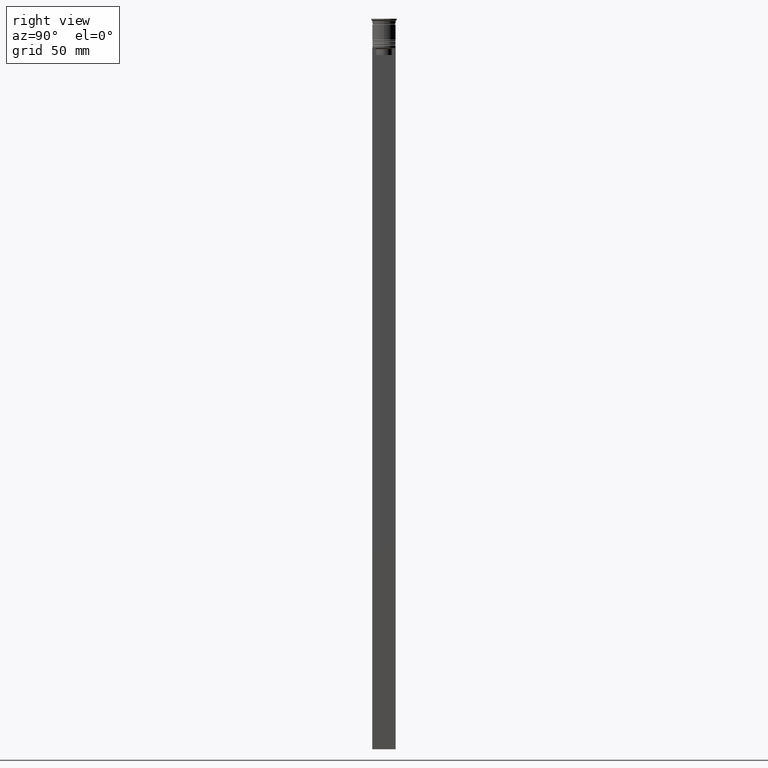
[diagram: clean part render]
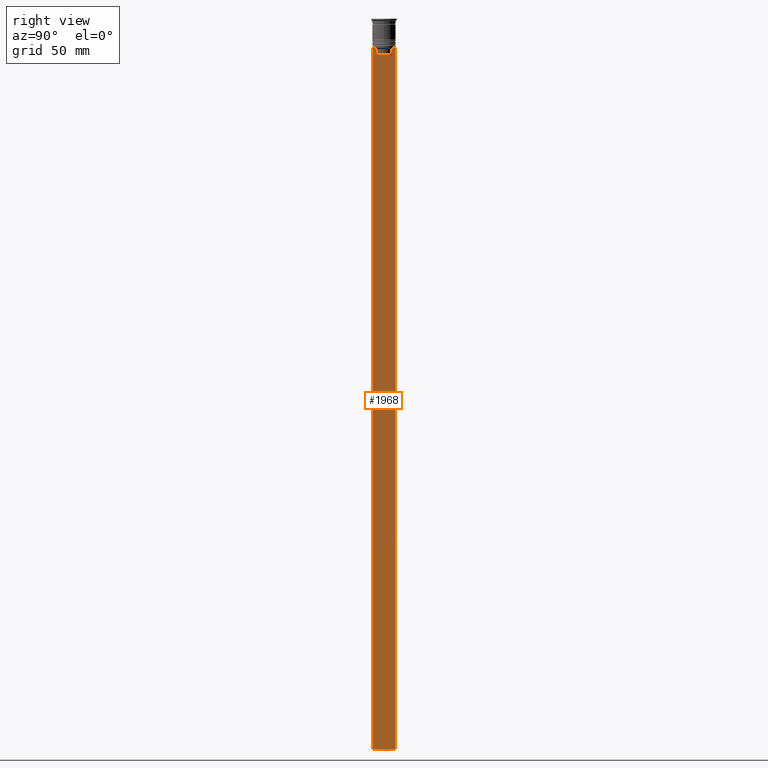
[diagram: same view with one face highlighted and labeled with its STEP entity id]
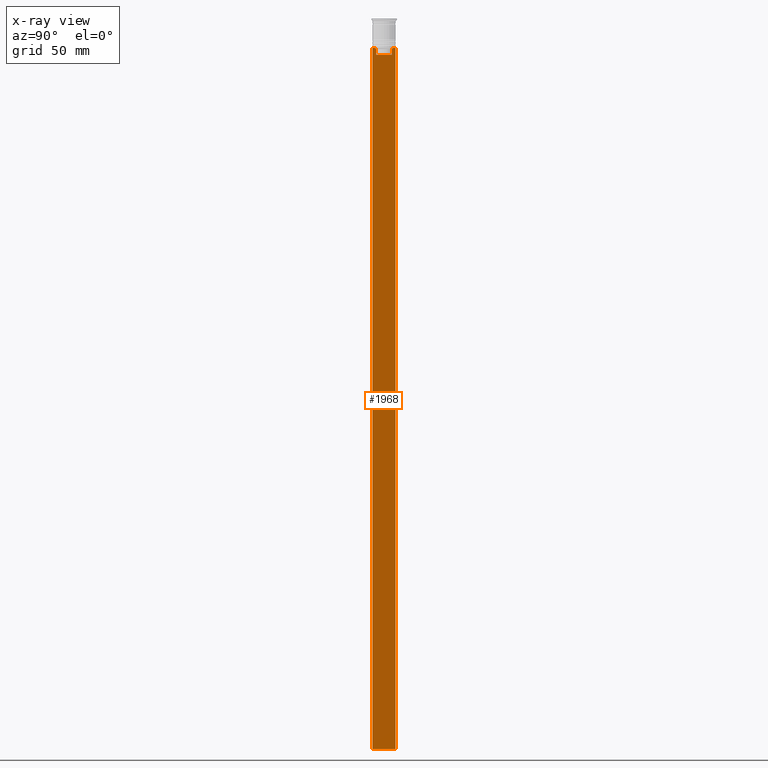
[diagram: x-ray of the same camera — body ghosted, the highlighted face saturated]
A machine part, right view. The second image highlights one B-rep face of the part: STEP entity #1968.
The next image is the same camera in x-ray: the body ghosted, the highlighted face saturated — about 0% of this face is hidden behind the body in this view.
In plain terms, the highlighted planar face has unit normal (-1, 0, 0).
Its self-contained STEP definition (entity closure, byte-faithful):
#14 = LINE ( 'NONE', #836, #1117 ) ;
#30 = CARTESIAN_POINT ( 'NONE',  ( 0.5000000000000000000, -3.867815921162742754, -12.50000000000000000 ) ) ;
#62 = DIRECTION ( 'NONE',  ( 0.000000000000000000, 1.000000000000000000, 0.000000000000000000 ) ) ;
#83 = CARTESIAN_POINT ( 'NONE',  ( 0.5000000000000000000, -4.874423042781575788, -12.50000000000000000 ) ) ;
#92 = VERTEX_POINT ( 'NONE', #1532 ) ;
#101 = VERTEX_POINT ( 'NONE', #779 ) ;
#103 = LINE ( 'NONE', #926, #1994 ) ;
#105 = VECTOR ( 'NONE', #1983, 1000.000000000000000 ) ;
#135 = EDGE_CURVE ( 'NONE', #400, #917, #349, .T. ) ;
#156 = CARTESIAN_POINT ( 'NONE',  ( 0.5000000000000000000, -3.699658232838647365, -12.66676999593996555 ) ) ;
#245 = LINE ( 'NONE', #432, #1605 ) ;
#281 = CARTESIAN_POINT ( 'NONE',  ( 0.5000000000000000000, -4.999999999999999112, -2.450124378879110054 ) ) ;
#343 = CARTESIAN_POINT ( 'NONE',  ( 0.5000000000000000000, -3.363034344160045208, -13.00000000000000178 ) ) ;
#349 = LINE ( 'NONE', #983, #480 ) ;
#380 = DIRECTION ( 'NONE',  ( 0.000000000000000000, 0.000000000000000000, -1.000000000000000000 ) ) ;
#386 = VERTEX_POINT ( 'NONE', #30 ) ;
#389 = VERTEX_POINT ( 'NONE', #1186 ) ;
#395 = CARTESIAN_POINT ( 'NONE',  ( 0.5000000000000000000, 4.874423042781575788, -12.50000000000000000 ) ) ;
#400 = VERTEX_POINT ( 'NONE', #442 ) ;
#432 = CARTESIAN_POINT ( 'NONE',  ( 0.5000000000000000000, -4.999999999999999112, -312.5000000000000000 ) ) ;
#442 = CARTESIAN_POINT ( 'NONE',  ( 0.5000000000000000000, 5.000000000000000888, -12.50000000000000000 ) ) ;
#449 = ORIENTED_EDGE ( 'NONE', *, *, #1131, .T. ) ;
#474 = EDGE_CURVE ( 'NONE', #92, #1432, #495, .T. ) ;
#480 = VECTOR ( 'NONE', #1323, 1000.000000000000000 ) ;
#488 = VERTEX_POINT ( 'NONE', #896 ) ;
#495 = LINE ( 'NONE', #281, #1765 ) ;
#572 = ORIENTED_EDGE ( 'NONE', *, *, #2272, .T. ) ;
#575 = DIRECTION ( 'NONE',  ( 0.000000000000000000, -1.000000000000000000, 0.000000000000000000 ) ) ;
#579 = CARTESIAN_POINT ( 'NONE',  ( 0.5000000000000000000, -3.867815921162742754, -12.50000000000000000 ) ) ;
#609 = CARTESIAN_POINT ( 'NONE',  ( 0.5000000000000000000, -4.999999999999999112, -2.450124378879110054 ) ) ;
#617 = EDGE_CURVE ( 'NONE', #400, #2358, #2548, .T. ) ;
#666 = ORIENTED_EDGE ( 'NONE', *, *, #806, .T. ) ;
#683 = ORIENTED_EDGE ( 'NONE', *, *, #1315, .T. ) ;
#701 = CARTESIAN_POINT ( 'NONE',  ( 0.5000000000000000000, -4.999999999999999112, -12.50000000000000000 ) ) ;
#779 = CARTESIAN_POINT ( 'NONE',  ( 0.5000000000000000000, -3.363034344160045208, -13.00000000000000178 ) ) ;
#782 = ORIENTED_EDGE ( 'NONE', *, *, #135, .F. ) ;
#806 = EDGE_CURVE ( 'NONE', #386, #899, #852, .T. ) ;
#836 = CARTESIAN_POINT ( 'NONE',  ( 0.5000000000000000000, -3.363034344160045208, 0.000000000000000000 ) ) ;
#852 = LINE ( 'NONE', #701, #2477 ) ;
#865 = DIRECTION ( 'NONE',  ( 0.000000000000000000, -1.000000000000000000, 0.000000000000000000 ) ) ;
#896 = CARTESIAN_POINT ( 'NONE',  ( 0.5000000000000000000, 3.363034344160045208, -13.00000000000000178 ) ) ;
#899 = VERTEX_POINT ( 'NONE', #83 ) ;
#917 = VERTEX_POINT ( 'NONE', #2467 ) ;
#919 = CARTESIAN_POINT ( 'NONE',  ( 0.5000000000000000000, -3.531412985305424801, -12.83345201382502765 ) ) ;
#926 = CARTESIAN_POINT ( 'NONE',  ( 0.5000000000000000000, 3.399999999999998135, -15.50000000000000000 ) ) ;
#934 = B_SPLINE_CURVE_WITH_KNOTS ( 'NONE', 3,
 ( #343, #919, #156, #579 ),
 .UNSPECIFIED., .F., .F.,
 ( 4, 4 ),
 ( 0.01632394437298965648, 0.01703543518243618576 ),
 .UNSPECIFIED. ) ;
#962 = EDGE_CURVE ( 'NONE', #899, #92, #1152, .T. ) ;
#983 = CARTESIAN_POINT ( 'NONE',  ( 0.5000000000000000000, 5.000000000000000888, -2.450124378879110054 ) ) ;
#995 = EDGE_CURVE ( 'NONE', #488, #389, #1377, .T. ) ;
#1031 = DIRECTION ( 'NONE',  ( 0.000000000000000000, 0.000000000000000000, 1.000000000000000000 ) ) ;
#1117 = VECTOR ( 'NONE', #1181, 1000.000000000000000 ) ;
#1128 = CARTESIAN_POINT ( 'NONE',  ( 0.5000000000000000000, -4.999999999999999112, -12.50000000000000000 ) ) ;
#1131 = EDGE_CURVE ( 'NONE', #1432, #917, #245, .T. ) ;
#1134 = CARTESIAN_POINT ( 'NONE',  ( 0.5000000000000000000, -4.999999999999999112, -12.50000000000000000 ) ) ;
#1152 = LINE ( 'NONE', #1969, #105 ) ;
#1181 = DIRECTION ( 'NONE',  ( -0.000000000000000000, -0.000000000000000000, 1.000000000000000000 ) ) ;
#1186 = CARTESIAN_POINT ( 'NONE',  ( 0.5000000000000000000, 3.363034344160045652, -15.50000000000000000 ) ) ;
#1217 = ORIENTED_EDGE ( 'NONE', *, *, #617, .T. ) ;
#1278 = CARTESIAN_POINT ( 'NONE',  ( 0.5000000000000000000, 3.531412678228260216, -12.83345231756357840 ) ) ;
#1302 = B_SPLINE_CURVE_WITH_KNOTS ( 'NONE', 3,
 ( #2399, #2376, #1278, #1657 ),
 .UNSPECIFIED., .F., .F.,
 ( 4, 4 ),
 ( 0.006644825462451552783, 0.007355321358912435097 ),
 .UNSPECIFIED. ) ;
#1315 = EDGE_CURVE ( 'NONE', #389, #1891, #103, .T. ) ;
#1323 = DIRECTION ( 'NONE',  ( 0.000000000000000000, 0.000000000000000000, -1.000000000000000000 ) ) ;
#1377 = LINE ( 'NONE', #1958, #1483 ) ;
#1389 = EDGE_CURVE ( 'NONE', #2358, #1910, #1569, .T. ) ;
#1432 = VERTEX_POINT ( 'NONE', #2170 ) ;
#1442 = ORIENTED_EDGE ( 'NONE', *, *, #474, .T. ) ;
#1483 = VECTOR ( 'NONE', #380, 1000.000000000000000 ) ;
#1532 = CARTESIAN_POINT ( 'NONE',  ( 0.5000000000000000000, -4.999999999999999112, -12.50000000000000000 ) ) ;
#1552 = DIRECTION ( 'NONE',  ( 0.000000000000000000, -1.000000000000000000, 0.000000000000000000 ) ) ;
#1569 = LINE ( 'NONE', #1128, #1781 ) ;
#1578 = CARTESIAN_POINT ( 'NONE',  ( 0.5000000000000000000, 3.867815921162742754, -12.50000000000000000 ) ) ;
#1590 = FACE_OUTER_BOUND ( 'NONE', #2544, .T. ) ;
#1605 = VECTOR ( 'NONE', #62, 1000.000000000000000 ) ;
#1657 = CARTESIAN_POINT ( 'NONE',  ( 0.5000000000000000000, 3.363034344160045208, -13.00000000000000178 ) ) ;
#1658 = AXIS2_PLACEMENT_3D ( 'NONE', #609, #2042, #1031 ) ;
#1675 = ORIENTED_EDGE ( 'NONE', *, *, #995, .T. ) ;
#1765 = VECTOR ( 'NONE', #2469, 1000.000000000000000 ) ;
#1781 = VECTOR ( 'NONE', #575, 1000.000000000000000 ) ;
#1817 = CARTESIAN_POINT ( 'NONE',  ( 0.5000000000000000000, -3.363034344160045652, -15.50000000000000000 ) ) ;
#1857 = ORIENTED_EDGE ( 'NONE', *, *, #962, .T. ) ;
#1891 = VERTEX_POINT ( 'NONE', #1817 ) ;
#1910 = VERTEX_POINT ( 'NONE', #1578 ) ;
#1958 = CARTESIAN_POINT ( 'NONE',  ( 0.5000000000000000000, 3.363034344160045208, 0.000000000000000000 ) ) ;
#1968 = ADVANCED_FACE ( 'NONE', ( #1590 ), #2387, .F. ) ;
#1969 = CARTESIAN_POINT ( 'NONE',  ( 0.5000000000000000000, -4.999999999999999112, -12.50000000000000000 ) ) ;
#1976 = VECTOR ( 'NONE', #1552, 1000.000000000000000 ) ;
#1983 = DIRECTION ( 'NONE',  ( 0.000000000000000000, -1.000000000000000000, 0.000000000000000000 ) ) ;
#1988 = EDGE_CURVE ( 'NONE', #1910, #488, #1302, .T. ) ;
#1994 = VECTOR ( 'NONE', #2488, 1000.000000000000000 ) ;
#2042 = DIRECTION ( 'NONE',  ( -1.000000000000000000, 0.000000000000000000, 0.000000000000000000 ) ) ;
#2170 = CARTESIAN_POINT ( 'NONE',  ( 0.5000000000000000000, -4.999999999999999112, -312.5000000000000000 ) ) ;
#2183 = ORIENTED_EDGE ( 'NONE', *, *, #2189, .T. ) ;
#2189 = EDGE_CURVE ( 'NONE', #101, #386, #934, .T. ) ;
#2272 = EDGE_CURVE ( 'NONE', #1891, #101, #14, .T. ) ;
#2358 = VERTEX_POINT ( 'NONE', #395 ) ;
#2376 = CARTESIAN_POINT ( 'NONE',  ( 0.5000000000000000000, 3.699657965831574913, -12.66677026074361301 ) ) ;
#2387 = PLANE ( 'NONE',  #1658 ) ;
#2399 = CARTESIAN_POINT ( 'NONE',  ( 0.5000000000000000000, 3.867815921162742754, -12.50000000000000000 ) ) ;
#2467 = CARTESIAN_POINT ( 'NONE',  ( 0.5000000000000000000, 5.000000000000000888, -312.5000000000000000 ) ) ;
#2469 = DIRECTION ( 'NONE',  ( 0.000000000000000000, 0.000000000000000000, -1.000000000000000000 ) ) ;
#2477 = VECTOR ( 'NONE', #865, 1000.000000000000000 ) ;
#2488 = DIRECTION ( 'NONE',  ( 0.000000000000000000, -1.000000000000000000, 0.000000000000000000 ) ) ;
#2532 = ORIENTED_EDGE ( 'NONE', *, *, #1988, .T. ) ;
#2544 = EDGE_LOOP ( 'NONE', ( #2551, #2532, #1675, #683, #572, #2183, #666, #1857, #1442, #449, #782, #1217 ) ) ;
#2548 = LINE ( 'NONE', #1134, #1976 ) ;
#2551 = ORIENTED_EDGE ( 'NONE', *, *, #1389, .T. ) ;